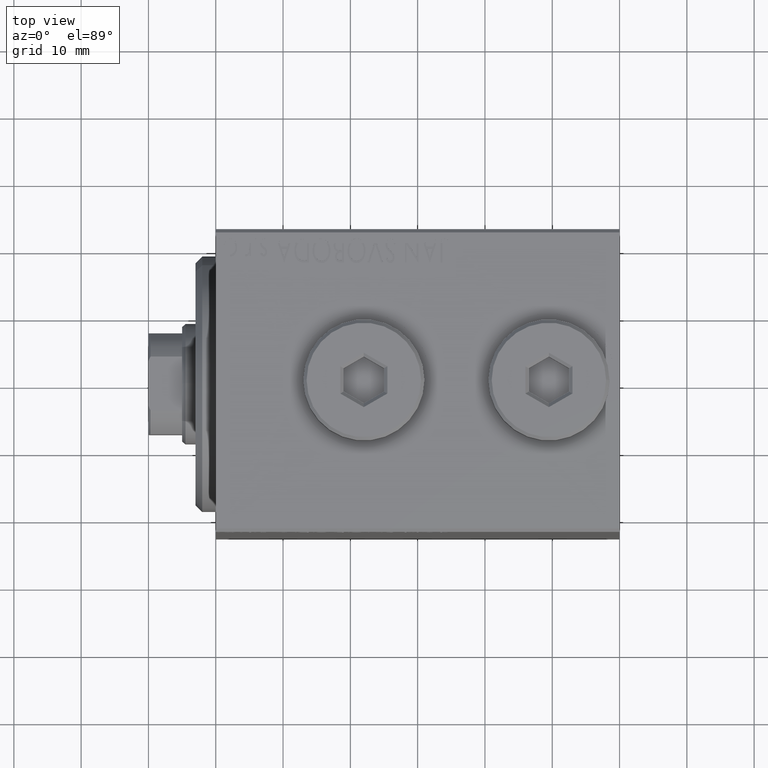
[diagram: clean part render]
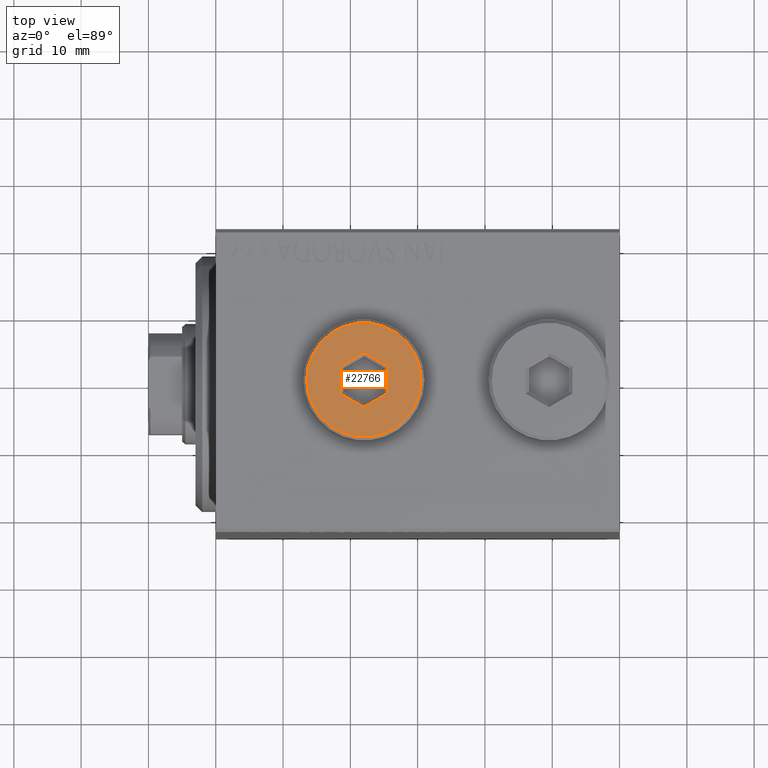
[diagram: same view with one face highlighted and labeled with its STEP entity id]
A machine part, top view. The second image highlights one B-rep face of the part: STEP entity #22766.
In plain terms, the highlighted planar face has unit normal (0, 0, 1).
Its self-contained STEP definition (entity closure, byte-faithful):
#1023 = LINE ( 'NONE', #17352, #9445 ) ;
#1227 = FACE_OUTER_BOUND ( 'NONE', #17740, .T. ) ;
#1960 = LINE ( 'NONE', #12493, #8803 ) ;
#2985 = AXIS2_PLACEMENT_3D ( 'NONE', #23496, #44266, #40846 ) ;
#3121 = ORIENTED_EDGE ( 'NONE', *, *, #20286, .T. ) ;
#3486 = CARTESIAN_POINT ( 'NONE',  ( -8.500000000000010658, 0.000000000000000000, 5.000000000000000000 ) ) ;
#3492 = EDGE_CURVE ( 'NONE', #30880, #40794, #1960, .T. ) ;
#3901 = ORIENTED_EDGE ( 'NONE', *, *, #4470, .T. ) ;
#4346 = DIRECTION ( 'NONE',  ( 1.000000000000000000, 0.000000000000000000, 0.000000000000000000 ) ) ;
#4388 = LINE ( 'NONE', #11471, #42374 ) ;
#4470 = EDGE_CURVE ( 'NONE', #24472, #30880, #37349, .T. ) ;
#5095 = VECTOR ( 'NONE', #29707, 1000.000000000000114 ) ;
#5529 = LINE ( 'NONE', #19488, #9512 ) ;
#5779 = CARTESIAN_POINT ( 'NONE',  ( 0.000000000000000000, 0.000000000000000000, 5.000000000000000000 ) ) ;
#5786 = DIRECTION ( 'NONE',  ( 0.8660254037844387076, 0.4999999999999998335, 0.000000000000000000 ) ) ;
#6269 = EDGE_CURVE ( 'NONE', #28311, #24472, #1023, .T. ) ;
#6856 = ORIENTED_EDGE ( 'NONE', *, *, #11302, .T. ) ;
#8292 = EDGE_CURVE ( 'NONE', #12201, #28311, #33137, .T. ) ;
#8803 = VECTOR ( 'NONE', #23233, 1000.000000000000000 ) ;
#9445 = VECTOR ( 'NONE', #18640, 1000.000000000000000 ) ;
#9512 = VECTOR ( 'NONE', #33422, 1000.000000000000000 ) ;
#10362 = ORIENTED_EDGE ( 'NONE', *, *, #6269, .T. ) ;
#10999 = CARTESIAN_POINT ( 'NONE',  ( 0.000000000000000000, 0.000000000000000000, 5.000000000000000000 ) ) ;
#11302 = EDGE_CURVE ( 'NONE', #19421, #39757, #35230, .T. ) ;
#11471 = CARTESIAN_POINT ( 'NONE',  ( 3.500000000000006661, -1.732050807568878303, 5.000000000000000000 ) ) ;
#12201 = VERTEX_POINT ( 'NONE', #32029 ) ;
#12493 = CARTESIAN_POINT ( 'NONE',  ( 3.250000000000003109, 2.165063509461103042, 5.000000000000000000 ) ) ;
#15425 = FACE_BOUND ( 'NONE', #15704, .T. ) ;
#15560 = ORIENTED_EDGE ( 'NONE', *, *, #25179, .T. ) ;
#15704 = EDGE_LOOP ( 'NONE', ( #10362, #3901, #39279, #3121, #31777, #19991 ) ) ;
#15771 = CARTESIAN_POINT ( 'NONE',  ( -3.250000000000003109, -2.165063509461102598, 5.000000000000000000 ) ) ;
#17352 = CARTESIAN_POINT ( 'NONE',  ( -3.500000000000006661, 1.732050807568878081, 5.000000000000000000 ) ) ;
#17740 = EDGE_LOOP ( 'NONE', ( #6856, #15560 ) ) ;
#18640 = DIRECTION ( 'NONE',  ( 0.000000000000000000, 1.000000000000000000, 0.000000000000000000 ) ) ;
#18845 = CARTESIAN_POINT ( 'NONE',  ( -0.2500000000000027756, 3.897114317029978459, 5.000000000000000000 ) ) ;
#19071 = PLANE ( 'NONE',  #41615 ) ;
#19421 = VERTEX_POINT ( 'NONE', #3486 ) ;
#19488 = CARTESIAN_POINT ( 'NONE',  ( 0.2500000000000027756, -3.897114317029979347, 5.000000000000000000 ) ) ;
#19991 = ORIENTED_EDGE ( 'NONE', *, *, #8292, .T. ) ;
#20286 = EDGE_CURVE ( 'NONE', #40794, #33342, #4388, .T. ) ;
#20499 = VECTOR ( 'NONE', #5786, 1000.000000000000000 ) ;
#22699 = CARTESIAN_POINT ( 'NONE',  ( -3.500000000000006661, 2.020725942163692945, 5.000000000000000000 ) ) ;
#22730 = DIRECTION ( 'NONE',  ( 1.000000000000000000, 0.000000000000000000, -0.000000000000000000 ) ) ;
#22766 = ADVANCED_FACE ( 'NONE', ( #15425, #1227 ), #19071, .T. ) ;
#23233 = DIRECTION ( 'NONE',  ( 0.8660254037844387076, -0.4999999999999998890, 0.000000000000000000 ) ) ;
#23375 = CARTESIAN_POINT ( 'NONE',  ( 3.500000000000006661, -2.020725942163693833, 5.000000000000000000 ) ) ;
#23496 = CARTESIAN_POINT ( 'NONE',  ( 0.000000000000000000, 0.000000000000000000, 5.000000000000000000 ) ) ;
#24181 = CIRCLE ( 'NONE', #2985, 8.500000000000010658 ) ;
#24472 = VERTEX_POINT ( 'NONE', #22699 ) ;
#24575 = EDGE_CURVE ( 'NONE', #33342, #12201, #5529, .T. ) ;
#25179 = EDGE_CURVE ( 'NONE', #39757, #19421, #24181, .T. ) ;
#25424 = DIRECTION ( 'NONE',  ( 0.000000000000000000, -1.000000000000000000, 0.000000000000000000 ) ) ;
#26606 = DIRECTION ( 'NONE',  ( 0.000000000000000000, 0.000000000000000000, 1.000000000000000000 ) ) ;
#28224 = CARTESIAN_POINT ( 'NONE',  ( 3.500000000000006661, 2.020725942163694722, 5.000000000000000000 ) ) ;
#28311 = VERTEX_POINT ( 'NONE', #37615 ) ;
#29707 = DIRECTION ( 'NONE',  ( -0.8660254037844385966, 0.4999999999999999445, 0.000000000000000000 ) ) ;
#30864 = AXIS2_PLACEMENT_3D ( 'NONE', #10999, #38651, #4346 ) ;
#30880 = VERTEX_POINT ( 'NONE', #43789 ) ;
#31777 = ORIENTED_EDGE ( 'NONE', *, *, #24575, .T. ) ;
#32029 = CARTESIAN_POINT ( 'NONE',  ( -1.006139216460143630E-15, -4.041451884327387667, 5.000000000000000000 ) ) ;
#33137 = LINE ( 'NONE', #15771, #5095 ) ;
#33342 = VERTEX_POINT ( 'NONE', #23375 ) ;
#33422 = DIRECTION ( 'NONE',  ( -0.8660254037844387076, -0.4999999999999998890, 0.000000000000000000 ) ) ;
#35230 = CIRCLE ( 'NONE', #30864, 8.500000000000010658 ) ;
#36009 = CARTESIAN_POINT ( 'NONE',  ( 8.500000000000010658, 1.071565949253934716E-15, 5.000000000000000000 ) ) ;
#37349 = LINE ( 'NONE', #18845, #20499 ) ;
#37615 = CARTESIAN_POINT ( 'NONE',  ( -3.500000000000006661, -2.020725942163694278, 5.000000000000000000 ) ) ;
#38651 = DIRECTION ( 'NONE',  ( 0.000000000000000000, 0.000000000000000000, 1.000000000000000000 ) ) ;
#39279 = ORIENTED_EDGE ( 'NONE', *, *, #3492, .T. ) ;
#39757 = VERTEX_POINT ( 'NONE', #36009 ) ;
#40794 = VERTEX_POINT ( 'NONE', #28224 ) ;
#40846 = DIRECTION ( 'NONE',  ( 1.000000000000000000, 0.000000000000000000, 0.000000000000000000 ) ) ;
#41615 = AXIS2_PLACEMENT_3D ( 'NONE', #5779, #26606, #22730 ) ;
#42374 = VECTOR ( 'NONE', #25424, 1000.000000000000000 ) ;
#43789 = CARTESIAN_POINT ( 'NONE',  ( 1.590596867181068292E-15, 4.041451884327386779, 5.000000000000000000 ) ) ;
#44266 = DIRECTION ( 'NONE',  ( 0.000000000000000000, 0.000000000000000000, 1.000000000000000000 ) ) ;